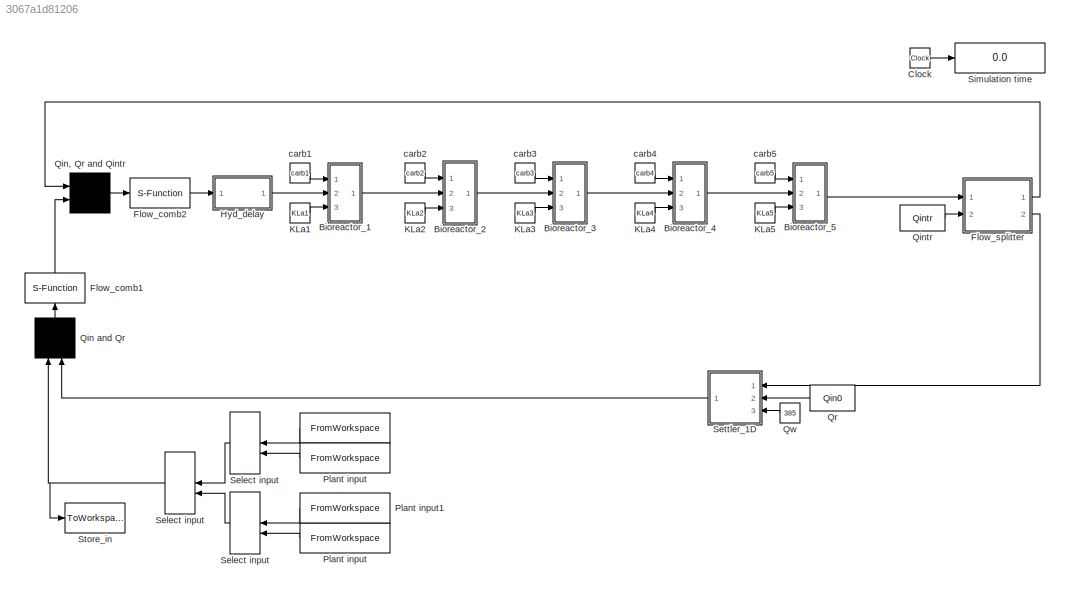
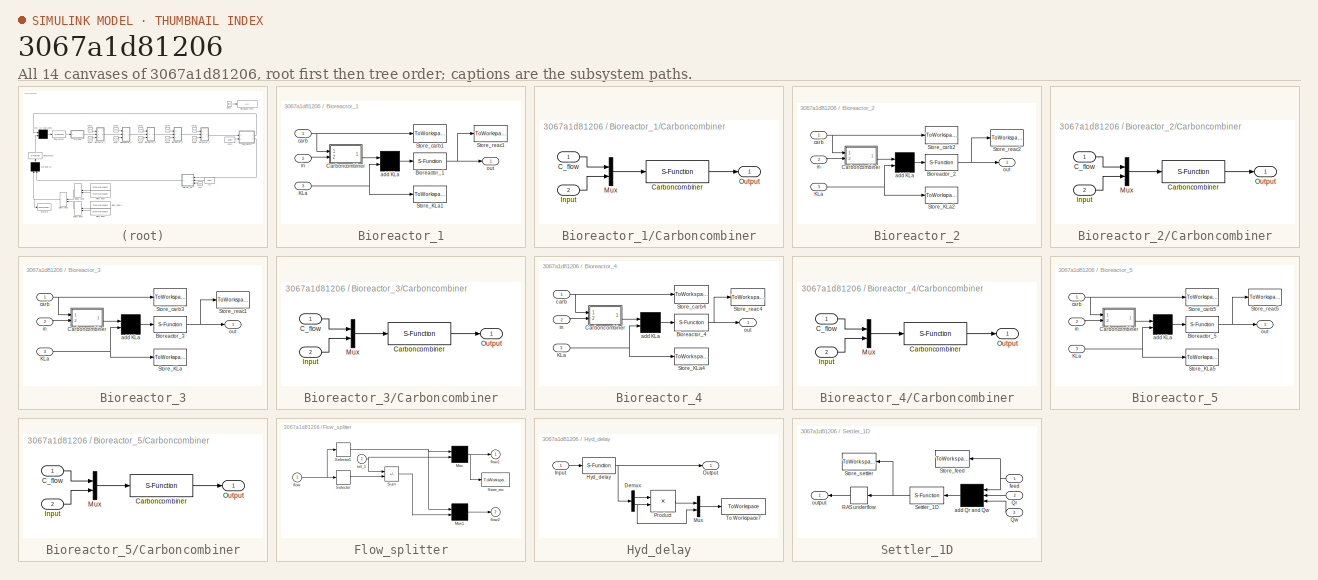
[diagram: thumbnail index - all 14 canvases of the model, root first then tree order]
MODEL slx_3067a1d81206
KIND model
CONFIG AbsTol = 1e-8
CONFIG EnableMultiTasking = off
CONFIG FixedStep = 0.01
CONFIG MaxStep = auto
CONFIG MinStep = auto
CONFIG RelTol = 1e-5
CONFIG SampleTimeConstraint = Unconstrained
CONFIG SolverName = ode15s
CONFIG StartTime = 0.0
CONFIG StopTime = 50
BLOCK [FromWorkspace]  
  OutputAfterFinalValue = Holding final value
  SampleTime = -1
  VariableName = CONSTINFLUENT
  ZeroCross = off
BLOCK [ManualSwitch]  Select input
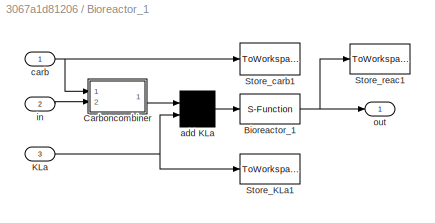
BLOCK [SubSystem] Bioreactor_1
  Ports = [3, 1]
  RequestExecContextInheritance = off
BLOCK [S-Function] Bioreactor_1/Bioreactor_1
  EnableBusSupport = off
  FunctionName = asm1
  Parameters = XINIT1,PAR1,VOL1,SOSAT1
  Ports = [1, 1]
  SFcnIsStateOwnerBlock = off
  SFunctionDeploymentMode = off
BLOCK [SubSystem] Bioreactor_1/Carboncombiner
  Ports = [2, 1]
  RequestExecContextInheritance = off
BLOCK [Inport] Bioreactor_1/Carboncombiner/C_flow
BLOCK [S-Function] Bioreactor_1/Carboncombiner/Carboncombiner
  EnableBusSupport = off
  FunctionName = carboncombiner
  Parameters = CARBONSOURCECONC
  Ports = [1, 1]
  SFcnIsStateOwnerBlock = off
  SFunctionDeploymentMode = off
BLOCK [Inport] Bioreactor_1/Carboncombiner/Input
  Port = 2
BLOCK [Mux] Bioreactor_1/Carboncombiner/Mux
  DisplayOption = bar
  Inputs = 2
  Ports = [2, 1]
BLOCK [Outport] Bioreactor_1/Carboncombiner/Output
BLOCK [Inport] Bioreactor_1/KLa
  Port = 3
BLOCK [ToWorkspace] Bioreactor_1/Store_KLa1
  MaxDataPoints = inf
  Ports = [1]
  SampleTime = -1
  VariableName = kla1in
BLOCK [ToWorkspace] Bioreactor_1/Store_carb1
  MaxDataPoints = inf
  Ports = [1]
  SampleTime = -1
  VariableName = carbon1in
BLOCK [ToWorkspace] Bioreactor_1/Store_reac1
  MaxDataPoints = inf
  Ports = [1]
  SampleTime = -1
  VariableName = reac1
BLOCK [Mux] Bioreactor_1/add KLa
  Inputs = 2
  Ports = [2, 1]
BLOCK [Inport] Bioreactor_1/carb
BLOCK [Inport] Bioreactor_1/in
  Port = 2
BLOCK [Outport] Bioreactor_1/out
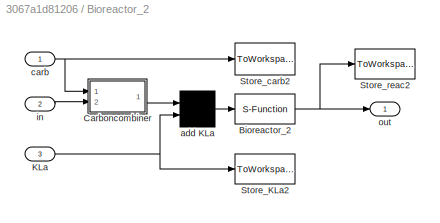
BLOCK [SubSystem] Bioreactor_2
  Ports = [3, 1]
  RequestExecContextInheritance = off
BLOCK [S-Function] Bioreactor_2/Bioreactor_2
  EnableBusSupport = off
  FunctionName = asm1
  Parameters = XINIT2,PAR2,VOL2,SOSAT2
  Ports = [1, 1]
  SFcnIsStateOwnerBlock = off
  SFunctionDeploymentMode = off
BLOCK [SubSystem] Bioreactor_2/Carboncombiner
  Ports = [2, 1]
  RequestExecContextInheritance = off
BLOCK [Inport] Bioreactor_2/Carboncombiner/C_flow
BLOCK [S-Function] Bioreactor_2/Carboncombiner/Carboncombiner
  EnableBusSupport = off
  FunctionName = carboncombiner
  Parameters = CARBONSOURCECONC
  Ports = [1, 1]
  SFcnIsStateOwnerBlock = off
  SFunctionDeploymentMode = off
BLOCK [Inport] Bioreactor_2/Carboncombiner/Input
  Port = 2
BLOCK [Mux] Bioreactor_2/Carboncombiner/Mux
  DisplayOption = bar
  Inputs = 2
  Ports = [2, 1]
BLOCK [Outport] Bioreactor_2/Carboncombiner/Output
BLOCK [Inport] Bioreactor_2/KLa
  Port = 3
BLOCK [ToWorkspace] Bioreactor_2/Store_KLa2
  MaxDataPoints = inf
  Ports = [1]
  SampleTime = -1
  VariableName = kla2in
BLOCK [ToWorkspace] Bioreactor_2/Store_carb2
  MaxDataPoints = inf
  Ports = [1]
  SampleTime = -1
  VariableName = carbon2in
BLOCK [ToWorkspace] Bioreactor_2/Store_reac2
  MaxDataPoints = inf
  Ports = [1]
  SampleTime = -1
  VariableName = reac2
BLOCK [Mux] Bioreactor_2/add KLa
  Inputs = 2
  Ports = [2, 1]
BLOCK [Inport] Bioreactor_2/carb
BLOCK [Inport] Bioreactor_2/in
  Port = 2
BLOCK [Outport] Bioreactor_2/out
BLOCK [SubSystem] Bioreactor_3
  Ports = [3, 1]
  RequestExecContextInheritance = off
BLOCK [S-Function] Bioreactor_3/Bioreactor_3
  EnableBusSupport = off
  FunctionName = asm1
  Parameters = XINIT3,PAR3,VOL3,SOSAT3
  Ports = [1, 1]
  SFcnIsStateOwnerBlock = off
  SFunctionDeploymentMode = off
BLOCK [SubSystem] Bioreactor_3/Carboncombiner
  Ports = [2, 1]
  RequestExecContextInheritance = off
BLOCK [Inport] Bioreactor_3/Carboncombiner/C_flow
BLOCK [S-Function] Bioreactor_3/Carboncombiner/Carboncombiner
  EnableBusSupport = off
  FunctionName = carboncombiner
  Parameters = CARBONSOURCECONC
  Ports = [1, 1]
  SFcnIsStateOwnerBlock = off
  SFunctionDeploymentMode = off
BLOCK [Inport] Bioreactor_3/Carboncombiner/Input
  Port = 2
BLOCK [Mux] Bioreactor_3/Carboncombiner/Mux
  DisplayOption = bar
  Inputs = 2
  Ports = [2, 1]
BLOCK [Outport] Bioreactor_3/Carboncombiner/Output
BLOCK [Inport] Bioreactor_3/KLa
  Port = 3
BLOCK [ToWorkspace] Bioreactor_3/Store_KLa
  MaxDataPoints = inf
  Ports = [1]
  SampleTime = -1
  VariableName = kla3in
BLOCK [ToWorkspace] Bioreactor_3/Store_carb3
  MaxDataPoints = inf
  Ports = [1]
  SampleTime = -1
  VariableName = carbon3in
BLOCK [ToWorkspace] Bioreactor_3/Store_reac1
  MaxDataPoints = inf
  Ports = [1]
  SampleTime = -1
  VariableName = reac3
BLOCK [Mux] Bioreactor_3/add KLa
  Inputs = 2
  Ports = [2, 1]
BLOCK [Inport] Bioreactor_3/carb
BLOCK [Inport] Bioreactor_3/in
  Port = 2
BLOCK [Outport] Bioreactor_3/out
BLOCK [SubSystem] Bioreactor_4
  Ports = [3, 1]
  RequestExecContextInheritance = off
BLOCK [S-Function] Bioreactor_4/Bioreactor_4
  EnableBusSupport = off
  FunctionName = asm1
  Parameters = XINIT4,PAR4,VOL4,SOSAT4
  Ports = [1, 1]
  SFcnIsStateOwnerBlock = off
  SFunctionDeploymentMode = off
BLOCK [SubSystem] Bioreactor_4/Carboncombiner
  Ports = [2, 1]
  RequestExecContextInheritance = off
BLOCK [Inport] Bioreactor_4/Carboncombiner/C_flow
BLOCK [S-Function] Bioreactor_4/Carboncombiner/Carboncombiner
  EnableBusSupport = off
  FunctionName = carboncombiner
  Parameters = CARBONSOURCECONC
  Ports = [1, 1]
  SFcnIsStateOwnerBlock = off
  SFunctionDeploymentMode = off
BLOCK [Inport] Bioreactor_4/Carboncombiner/Input
  Port = 2
BLOCK [Mux] Bioreactor_4/Carboncombiner/Mux
  DisplayOption = bar
  Inputs = 2
  Ports = [2, 1]
BLOCK [Outport] Bioreactor_4/Carboncombiner/Output
BLOCK [Inport] Bioreactor_4/KLa
  Port = 3
BLOCK [ToWorkspace] Bioreactor_4/Store_KLa4
  MaxDataPoints = inf
  Ports = [1]
  SampleTime = -1
  VariableName = kla4in
BLOCK [ToWorkspace] Bioreactor_4/Store_carb4
  MaxDataPoints = inf
  Ports = [1]
  SampleTime = -1
  VariableName = carbon4in
BLOCK [ToWorkspace] Bioreactor_4/Store_reac4
  MaxDataPoints = inf
  Ports = [1]
  SampleTime = -1
  VariableName = reac4
BLOCK [Mux] Bioreactor_4/add KLa
  Inputs = 2
  Ports = [2, 1]
BLOCK [Inport] Bioreactor_4/carb
BLOCK [Inport] Bioreactor_4/in
  Port = 2
BLOCK [Outport] Bioreactor_4/out
BLOCK [SubSystem] Bioreactor_5
  Ports = [3, 1]
  RequestExecContextInheritance = off
BLOCK [S-Function] Bioreactor_5/Bioreactor_5
  EnableBusSupport = off
  FunctionName = asm1
  Parameters = XINIT5,PAR5,VOL5,SOSAT5
  Ports = [1, 1]
  SFcnIsStateOwnerBlock = off
  SFunctionDeploymentMode = off
BLOCK [SubSystem] Bioreactor_5/Carboncombiner
  Ports = [2, 1]
  RequestExecContextInheritance = off
BLOCK [Inport] Bioreactor_5/Carboncombiner/C_flow
BLOCK [S-Function] Bioreactor_5/Carboncombiner/Carboncombiner
  EnableBusSupport = off
  FunctionName = carboncombiner
  Parameters = CARBONSOURCECONC
  Ports = [1, 1]
  SFcnIsStateOwnerBlock = off
  SFunctionDeploymentMode = off
BLOCK [Inport] Bioreactor_5/Carboncombiner/Input
  Port = 2
BLOCK [Mux] Bioreactor_5/Carboncombiner/Mux
  DisplayOption = bar
  Inputs = 2
  Ports = [2, 1]
BLOCK [Outport] Bioreactor_5/Carboncombiner/Output
BLOCK [Inport] Bioreactor_5/KLa
  Port = 3
BLOCK [ToWorkspace] Bioreactor_5/Store_KLa5
  MaxDataPoints = inf
  Ports = [1]
  SampleTime = -1
  VariableName = kla5in
BLOCK [ToWorkspace] Bioreactor_5/Store_carb5
  MaxDataPoints = inf
  Ports = [1]
  SampleTime = -1
  VariableName = carbon5in
BLOCK [ToWorkspace] Bioreactor_5/Store_reac5
  MaxDataPoints = inf
  Ports = [1]
  SampleTime = -1
  VariableName = reac5
BLOCK [Mux] Bioreactor_5/add KLa
  Inputs = 2
  Ports = [2, 1]
BLOCK [Inport] Bioreactor_5/carb
BLOCK [Inport] Bioreactor_5/in
  Port = 2
BLOCK [Outport] Bioreactor_5/out
BLOCK [Clock] Clock
BLOCK [S-Function] Flow_comb1
  EnableBusSupport = off
  FunctionName = combiner
  NameLocation = right
  Ports = [1, 1]
  SFcnIsStateOwnerBlock = off
  SFunctionDeploymentMode = off
BLOCK [S-Function] Flow_comb2
  EnableBusSupport = off
  FunctionName = combiner
  Ports = [1, 1]
  SFcnIsStateOwnerBlock = off
  SFunctionDeploymentMode = off
BLOCK [SubSystem] Flow_splitter
  Ports = [2, 2]
  RequestExecContextInheritance = off
BLOCK [Mux] Flow_splitter/Mux
  Inputs = 2
  Ports = [2, 1]
BLOCK [Mux] Flow_splitter/Mux1
  Inputs = 2
  Ports = [2, 1]
BLOCK [Selector] Flow_splitter/Selector
  IndexOptions = Index vector (dialog)
  Indices = [15]
  InputPortWidth = 15
  OutputSizes = 1
  Ports = [1, 1]
BLOCK [Selector] Flow_splitter/Selector1
  IndexOptions = Index vector (dialog)
  Indices = [1 2 3 4 5 6 7 8 9 10 11 12 13 14]
  InputPortWidth = 15
  OutputSizes = 1
  Ports = [1, 1]
BLOCK [ToWorkspace] Flow_splitter/Store_rec
  MaxDataPoints = inf
  Ports = [1]
  SampleTime = -1
  VariableName = rec
BLOCK [Sum] Flow_splitter/Sum
  IconShape = rectangular
  InputSameDT = on
  Inputs = -+
  OutDataTypeStr = Inherit: Same as first input
  Ports = [2, 1]
  SaturateOnIntegerOverflow = on
BLOCK [Inport] Flow_splitter/flow
BLOCK [Outport] Flow_splitter/flow1
BLOCK [Outport] Flow_splitter/flow2
  Port = 2
BLOCK [Inport] Flow_splitter/set_1
  Port = 2
BLOCK [SubSystem] Hyd_delay
  Ports = [1, 1]
  RequestExecContextInheritance = off
BLOCK [Demux] Hyd_delay/Demux
  DisplayOption = none
  Outputs = [14,1]
  Ports = [1, 2]
BLOCK [S-Function] Hyd_delay/Hyd_delay
  EnableBusSupport = off
  FunctionName = hyddelayv3
  Parameters = XINITDELAY,PAR1,T
  Ports = [1, 1]
  SFcnIsStateOwnerBlock = off
  SFunctionDeploymentMode = off
BLOCK [Inport] Hyd_delay/Input
BLOCK [Mux] Hyd_delay/Mux
  DisplayOption = bar
  Inputs = 2
  Ports = [2, 1]
BLOCK [Outport] Hyd_delay/Output
BLOCK [Product] Hyd_delay/Product
  OutDataTypeStr = Inherit: Same as first input
  Ports = [2, 1]
  SaturateOnIntegerOverflow = on
BLOCK [ToWorkspace] Hyd_delay/To Workspace7
  MaxDataPoints = inf
  Ports = [1]
  SampleTime = -1
  VariableName = ASinput
BLOCK [Constant] KLa1
  Value = KLa1
BLOCK [Constant] KLa2
  Value = KLa2
BLOCK [Constant] KLa3
  Value = KLa3
BLOCK [Constant] KLa4
  Value = KLa4
BLOCK [Constant] KLa5
  Value = KLa5
BLOCK [FromWorkspace] Plant input
  OutputAfterFinalValue = Holding final value
  SampleTime = -1
  VariableName = DRYINFLUENT
  ZeroCross = off
BLOCK [FromWorkspace] Plant input 
  OutputAfterFinalValue = Holding final value
  SampleTime = -1
  VariableName = STORMINFLUENT
  ZeroCross = off
BLOCK [FromWorkspace] Plant input1
  OutputAfterFinalValue = Holding final value
  SampleTime = -1
  VariableName = RAININFLUENT
  ZeroCross = off
BLOCK [Mux] Qin and Qr
  Inputs = 2
  NameLocation = right
  Ports = [2, 1]
BLOCK [Mux] Qin, Qr and Qintr
  Inputs = 2
  Ports = [2, 1]
BLOCK [Constant] Qintr
  Value = Qintr
BLOCK [Constant] Qr
  Value = Qin0
BLOCK [Constant] Qw
  Value = 385
BLOCK [ManualSwitch] Select input
BLOCK [ManualSwitch] Select input 
  CurrentSetting = 0
BLOCK [SubSystem] Settler_1D
  Ports = [3, 1]
  RequestExecContextInheritance = off
BLOCK [Inport] Settler_1D/Qr
  Port = 2
BLOCK [Inport] Settler_1D/Qw
  Port = 3
BLOCK [Selector] Settler_1D/RAS underflow
  IndexOptions = Index vector (dialog)
  Indices = [1 2 3 4 5 6 7 8 9 10 11 12 13 14 15]
  InputPortWidth = 113
  OutputSizes = 1
  Ports = [1, 1]
BLOCK [S-Function] Settler_1D/Settler_1D
  EnableBusSupport = off
  FunctionName = settler1dv4
  Parameters = SETTLERINIT,SETTLERPAR,DIM,LAYER,MODELTYPE
  Ports = [1, 1]
  SFcnIsStateOwnerBlock = off
  SFunctionDeploymentMode = off
BLOCK [ToWorkspace] Settler_1D/Store_feed
  MaxDataPoints = inf
  Ports = [1]
  SampleTime = -1
  VariableName = feed
BLOCK [ToWorkspace] Settler_1D/Store_settler
  MaxDataPoints = inf
  Ports = [1]
  SampleTime = -1
  VariableName = settler
BLOCK [Mux] Settler_1D/add Qr and Qw
  Inputs = 3
  Ports = [3, 1]
BLOCK [Inport] Settler_1D/feed
BLOCK [Outport] Settler_1D/output
BLOCK [Display] Simulation time
  Decimation = 1
  Ports = [1]
BLOCK [ToWorkspace] Store_in
  MaxDataPoints = inf
  Ports = [1]
  SampleTime = -1
  VariableName = in
BLOCK [Constant] carb1
  NameLocation = top
  Value = carb1
BLOCK [Constant] carb2
  NameLocation = top
  Value = carb2
BLOCK [Constant] carb3
  NameLocation = top
  Value = carb3
BLOCK [Constant] carb4
  NameLocation = top
  Value = carb4
BLOCK [Constant] carb5
  NameLocation = top
  Value = carb5
LINE  :1 -> Select input:1
NET  Select input:1 -> Qin and Qr:1, Store_in:1
NET Bioreactor_1/Bioreactor_1:1 -> Bioreactor_1/Store_reac1:1, Bioreactor_1/out:1
LINE Bioreactor_1/Carboncombiner/C_flow:1 -> Bioreactor_1/Carboncombiner/Mux:1
LINE Bioreactor_1/Carboncombiner/Carboncombiner:1 -> Bioreactor_1/Carboncombiner/Output:1
LINE Bioreactor_1/Carboncombiner/Input:1 -> Bioreactor_1/Carboncombiner/Mux:2
LINE Bioreactor_1/Carboncombiner/Mux:1 -> Bioreactor_1/Carboncombiner/Carboncombiner:1
LINE Bioreactor_1/Carboncombiner:1 -> Bioreactor_1/add KLa:1
NET Bioreactor_1/KLa:1 -> Bioreactor_1/Store_KLa1:1, Bioreactor_1/add KLa:2
LINE Bioreactor_1/add KLa:1 -> Bioreactor_1/Bioreactor_1:1
NET Bioreactor_1/carb:1 -> Bioreactor_1/Carboncombiner:1, Bioreactor_1/Store_carb1:1
LINE Bioreactor_1/in:1 -> Bioreactor_1/Carboncombiner:2
LINE Bioreactor_1:1 -> Bioreactor_2:2
NET Bioreactor_2/Bioreactor_2:1 -> Bioreactor_2/Store_reac2:1, Bioreactor_2/out:1
LINE Bioreactor_2/Carboncombiner/C_flow:1 -> Bioreactor_2/Carboncombiner/Mux:1
LINE Bioreactor_2/Carboncombiner/Carboncombiner:1 -> Bioreactor_2/Carboncombiner/Output:1
LINE Bioreactor_2/Carboncombiner/Input:1 -> Bioreactor_2/Carboncombiner/Mux:2
LINE Bioreactor_2/Carboncombiner/Mux:1 -> Bioreactor_2/Carboncombiner/Carboncombiner:1
LINE Bioreactor_2/Carboncombiner:1 -> Bioreactor_2/add KLa:1
NET Bioreactor_2/KLa:1 -> Bioreactor_2/Store_KLa2:1, Bioreactor_2/add KLa:2
LINE Bioreactor_2/add KLa:1 -> Bioreactor_2/Bioreactor_2:1
NET Bioreactor_2/carb:1 -> Bioreactor_2/Carboncombiner:1, Bioreactor_2/Store_carb2:1
LINE Bioreactor_2/in:1 -> Bioreactor_2/Carboncombiner:2
LINE Bioreactor_2:1 -> Bioreactor_3:2
NET Bioreactor_3/Bioreactor_3:1 -> Bioreactor_3/Store_reac1:1, Bioreactor_3/out:1
LINE Bioreactor_3/Carboncombiner/C_flow:1 -> Bioreactor_3/Carboncombiner/Mux:1
LINE Bioreactor_3/Carboncombiner/Carboncombiner:1 -> Bioreactor_3/Carboncombiner/Output:1
LINE Bioreactor_3/Carboncombiner/Input:1 -> Bioreactor_3/Carboncombiner/Mux:2
LINE Bioreactor_3/Carboncombiner/Mux:1 -> Bioreactor_3/Carboncombiner/Carboncombiner:1
LINE Bioreactor_3/Carboncombiner:1 -> Bioreactor_3/add KLa:1
NET Bioreactor_3/KLa:1 -> Bioreactor_3/Store_KLa:1, Bioreactor_3/add KLa:2
LINE Bioreactor_3/add KLa:1 -> Bioreactor_3/Bioreactor_3:1
NET Bioreactor_3/carb:1 -> Bioreactor_3/Carboncombiner:1, Bioreactor_3/Store_carb3:1
LINE Bioreactor_3/in:1 -> Bioreactor_3/Carboncombiner:2
LINE Bioreactor_3:1 -> Bioreactor_4:2
NET Bioreactor_4/Bioreactor_4:1 -> Bioreactor_4/Store_reac4:1, Bioreactor_4/out:1
LINE Bioreactor_4/Carboncombiner/C_flow:1 -> Bioreactor_4/Carboncombiner/Mux:1
LINE Bioreactor_4/Carboncombiner/Carboncombiner:1 -> Bioreactor_4/Carboncombiner/Output:1
LINE Bioreactor_4/Carboncombiner/Input:1 -> Bioreactor_4/Carboncombiner/Mux:2
LINE Bioreactor_4/Carboncombiner/Mux:1 -> Bioreactor_4/Carboncombiner/Carboncombiner:1
LINE Bioreactor_4/Carboncombiner:1 -> Bioreactor_4/add KLa:1
NET Bioreactor_4/KLa:1 -> Bioreactor_4/Store_KLa4:1, Bioreactor_4/add KLa:2
LINE Bioreactor_4/add KLa:1 -> Bioreactor_4/Bioreactor_4:1
NET Bioreactor_4/carb:1 -> Bioreactor_4/Carboncombiner:1, Bioreactor_4/Store_carb4:1
LINE Bioreactor_4/in:1 -> Bioreactor_4/Carboncombiner:2
LINE Bioreactor_4:1 -> Bioreactor_5:2
NET Bioreactor_5/Bioreactor_5:1 -> Bioreactor_5/Store_reac5:1, Bioreactor_5/out:1
LINE Bioreactor_5/Carboncombiner/C_flow:1 -> Bioreactor_5/Carboncombiner/Mux:1
LINE Bioreactor_5/Carboncombiner/Carboncombiner:1 -> Bioreactor_5/Carboncombiner/Output:1
LINE Bioreactor_5/Carboncombiner/Input:1 -> Bioreactor_5/Carboncombiner/Mux:2
LINE Bioreactor_5/Carboncombiner/Mux:1 -> Bioreactor_5/Carboncombiner/Carboncombiner:1
LINE Bioreactor_5/Carboncombiner:1 -> Bioreactor_5/add KLa:1
NET Bioreactor_5/KLa:1 -> Bioreactor_5/Store_KLa5:1, Bioreactor_5/add KLa:2
LINE Bioreactor_5/add KLa:1 -> Bioreactor_5/Bioreactor_5:1
NET Bioreactor_5/carb:1 -> Bioreactor_5/Carboncombiner:1, Bioreactor_5/Store_carb5:1
LINE Bioreactor_5/in:1 -> Bioreactor_5/Carboncombiner:2
LINE Bioreactor_5:1 -> Flow_splitter:1
LINE Clock:1 -> Simulation time:1
LINE Flow_comb1:1 -> Qin, Qr and Qintr:2
LINE Flow_comb2:1 -> Hyd_delay:1
LINE Flow_splitter/Mux1:1 -> Flow_splitter/flow2:1
NET Flow_splitter/Mux:1 -> Flow_splitter/Store_rec:1, Flow_splitter/flow1:1
NET Flow_splitter/Selector1:1 -> Flow_splitter/Mux1:1, Flow_splitter/Mux:1
LINE Flow_splitter/Selector:1 -> Flow_splitter/Sum:2
LINE Flow_splitter/Sum:1 -> Flow_splitter/Mux1:2
NET Flow_splitter/flow:1 -> Flow_splitter/Selector1:1, Flow_splitter/Selector:1
NET Flow_splitter/set_1:1 -> Flow_splitter/Mux:2, Flow_splitter/Sum:1
LINE Flow_splitter:1 -> Qin, Qr and Qintr:1
LINE Flow_splitter:2 -> Settler_1D:1
LINE Hyd_delay/Demux:1 -> Hyd_delay/Product:1
NET Hyd_delay/Demux:2 -> Hyd_delay/Mux:2, Hyd_delay/Product:2
NET Hyd_delay/Hyd_delay:1 -> Hyd_delay/Demux:1, Hyd_delay/Output:1
LINE Hyd_delay/Input:1 -> Hyd_delay/Hyd_delay:1
LINE Hyd_delay/Mux:1 -> Hyd_delay/To Workspace7:1
LINE Hyd_delay/Product:1 -> Hyd_delay/Mux:1
LINE Hyd_delay:1 -> Bioreactor_1:2
LINE KLa1:1 -> Bioreactor_1:3
LINE KLa2:1 -> Bioreactor_2:3
LINE KLa3:1 -> Bioreactor_3:3
LINE KLa4:1 -> Bioreactor_4:3
LINE KLa5:1 -> Bioreactor_5:3
LINE Plant input :1 -> Select input :2
LINE Plant input1:1 -> Select input :1
LINE Plant input:1 -> Select input:2
LINE Qin and Qr:1 -> Flow_comb1:1
LINE Qin, Qr and Qintr:1 -> Flow_comb2:1
LINE Qintr:1 -> Flow_splitter:2
LINE Qr:1 -> Settler_1D:2
LINE Qw:1 -> Settler_1D:3
LINE Select input :1 ->  Select input:2
LINE Select input:1 ->  Select input:1
LINE Settler_1D/Qr:1 -> Settler_1D/add Qr and Qw:2
LINE Settler_1D/Qw:1 -> Settler_1D/add Qr and Qw:3
LINE Settler_1D/RAS underflow:1 -> Settler_1D/output:1
NET Settler_1D/Settler_1D:1 -> Settler_1D/RAS underflow:1, Settler_1D/Store_settler:1
LINE Settler_1D/add Qr and Qw:1 -> Settler_1D/Settler_1D:1
NET Settler_1D/feed:1 -> Settler_1D/Store_feed:1, Settler_1D/add Qr and Qw:1
LINE Settler_1D:1 -> Qin and Qr:2
LINE carb1:1 -> Bioreactor_1:1
LINE carb2:1 -> Bioreactor_2:1
LINE carb3:1 -> Bioreactor_3:1
LINE carb4:1 -> Bioreactor_4:1
LINE carb5:1 -> Bioreactor_5:1
note: NET lines group one-source signal fan-out (src -> all destinations, sorted); 1:1 wires keep LINE
